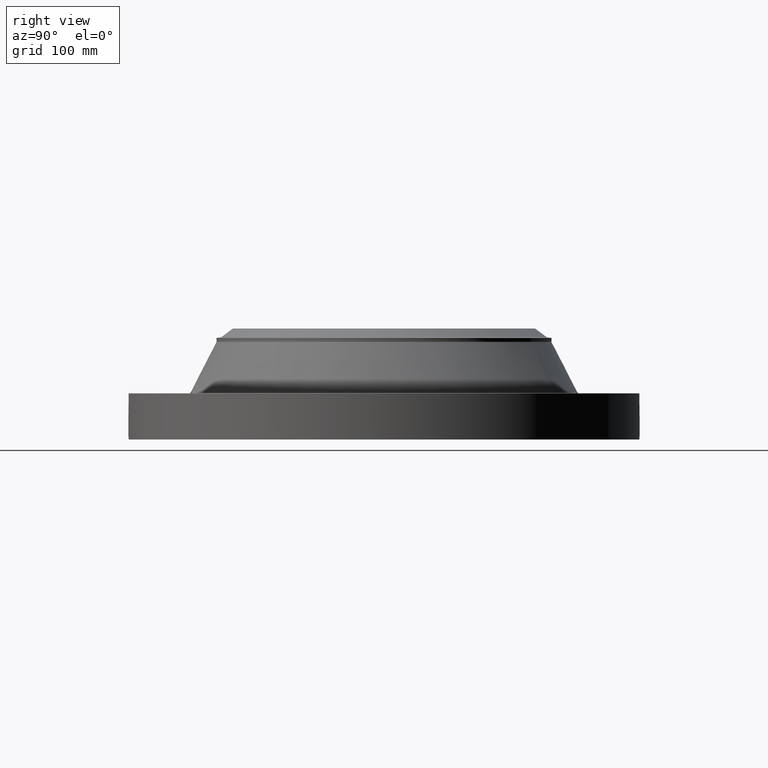
[diagram: clean part render]
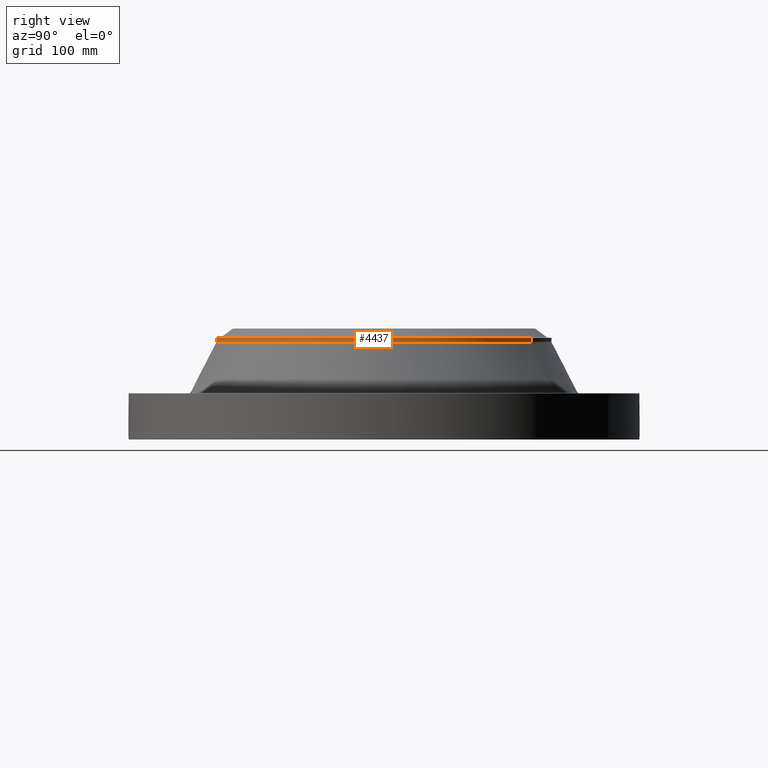
[diagram: same view with one face highlighted and labeled with its STEP entity id]
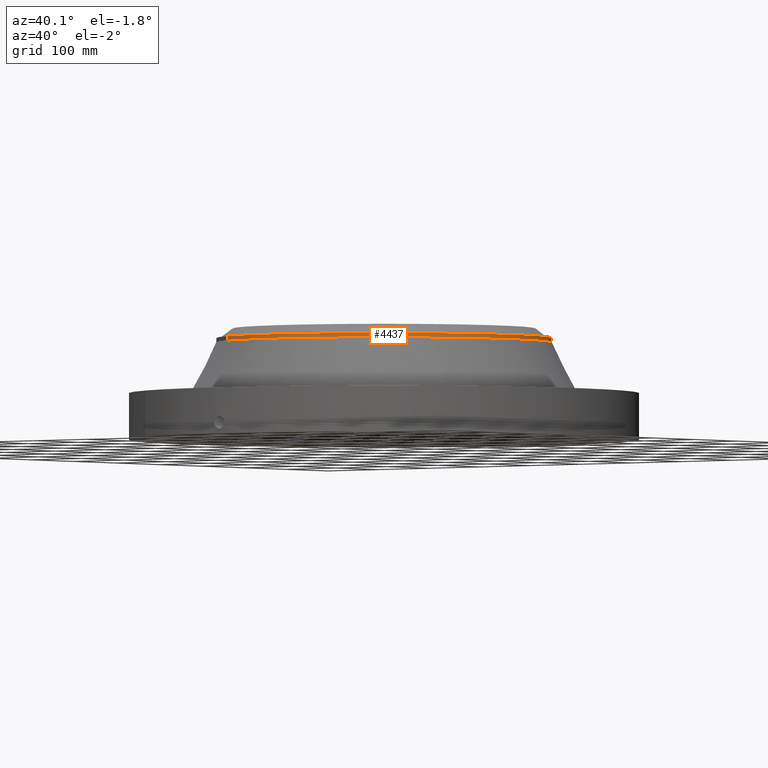
[diagram: same view with one face highlighted and labeled with its STEP entity id]
A machine part, right view. The second image highlights one B-rep face of the part: STEP entity #4437.
A second angle (auxiliary view) of the same face is appended — the face is thin or edge-on in the first view.
In plain terms, the highlighted cylindrical surface (partial cylindrical patch) has radius 254 mm, axis along (0, 0, -1).
Its self-contained STEP definition (entity closure, byte-faithful):
#3600=AXIS2_PLACEMENT_3D('Circle Axis2P3D',#3598,#3599,$) ;
#4402=AXIS2_PLACEMENT_3D('Cylinder Axis2P3D',#4399,#4400,#4401) ;
#4420=AXIS2_PLACEMENT_3D('Circle Axis2P3D',#4418,#4419,$) ;
#4427=AXIS2_PLACEMENT_3D('Circle Axis2P3D',#4425,#4426,$) ;
#3595=CARTESIAN_POINT('Vertex',(4.79425538606,8.77582561894,6.07031923874)) ;
#3598=CARTESIAN_POINT('Axis2P3D Location',(0.,0.,6.07031923874)) ;
#3602=CARTESIAN_POINT('Vertex',(-4.79425538606,-8.77582561894,6.07031923874)) ;
#4399=CARTESIAN_POINT('Axis2P3D Location',(0.,0.,3.56000000001)) ;
#4404=CARTESIAN_POINT('Line Origine',(-4.79425538606,-8.77582561894,6.18842947496)) ;
#4408=CARTESIAN_POINT('Vertex',(-4.79425538606,-8.77582561894,6.30653971118)) ;
#4411=CARTESIAN_POINT('Line Origine',(4.79425538606,8.77582561894,6.18842947496)) ;
#4415=CARTESIAN_POINT('Vertex',(4.79425538606,8.77582561894,6.30653971118)) ;
#4418=CARTESIAN_POINT('Axis2P3D Location',(0.,0.,6.30653971118)) ;
#4422=CARTESIAN_POINT('Vertex',(4.79425538606,-8.77582561894,6.30653971118)) ;
#4425=CARTESIAN_POINT('Axis2P3D Location',(0.,0.,6.30653971118)) ;
#3599=DIRECTION('Axis2P3D Direction',(0.,0.,-0.0393700787402)) ;
#4400=DIRECTION('Axis2P3D Direction',(0.,0.,-0.0393700787402)) ;
#4401=DIRECTION('Axis2P3D XDirection',(-0.0188750212049,-0.0345504945626,0.)) ;
#4405=DIRECTION('Vector Direction',(0.,0.,-0.0393700787402)) ;
#4412=DIRECTION('Vector Direction',(0.,0.,-0.0393700787402)) ;
#4419=DIRECTION('Axis2P3D Direction',(0.,0.,-0.0393700787402)) ;
#4426=DIRECTION('Axis2P3D Direction',(0.,0.,-0.0393700787402)) ;
#4406=VECTOR('Line Direction',#4405,0.0393700787402) ;
#4413=VECTOR('Line Direction',#4412,0.0393700787402) ;
#4431=ORIENTED_EDGE('',*,*,#4410,.F.) ;
#4432=ORIENTED_EDGE('',*,*,#3604,.F.) ;
#4433=ORIENTED_EDGE('',*,*,#4417,.T.) ;
#4434=ORIENTED_EDGE('',*,*,#4424,.F.) ;
#4435=ORIENTED_EDGE('',*,*,#4429,.T.) ;
#4437=ADVANCED_FACE('PartBody',(#4436),#4403,.T.) ;
#3601=CIRCLE('generated circle',#3600,10.) ;
#4421=CIRCLE('generated circle',#4420,10.) ;
#4428=CIRCLE('generated circle',#4427,10.) ;
#4403=CYLINDRICAL_SURFACE('generated cylinder',#4402,10.) ;
#3604=EDGE_CURVE('',#3596,#3603,#3601,.T.) ;
#4410=EDGE_CURVE('',#3603,#4409,#4407,.F.) ;
#4417=EDGE_CURVE('',#3596,#4416,#4414,.F.) ;
#4424=EDGE_CURVE('',#4423,#4416,#4421,.F.) ;
#4429=EDGE_CURVE('',#4423,#4409,#4428,.T.) ;
#4430=EDGE_LOOP('',(#4431,#4432,#4433,#4434,#4435)) ;
#4436=FACE_OUTER_BOUND('',#4430,.T.) ;
#4407=LINE('Line',#4404,#4406) ;
#4414=LINE('Line',#4411,#4413) ;
#3596=VERTEX_POINT('',#3595) ;
#3603=VERTEX_POINT('',#3602) ;
#4409=VERTEX_POINT('',#4408) ;
#4416=VERTEX_POINT('',#4415) ;
#4423=VERTEX_POINT('',#4422) ;